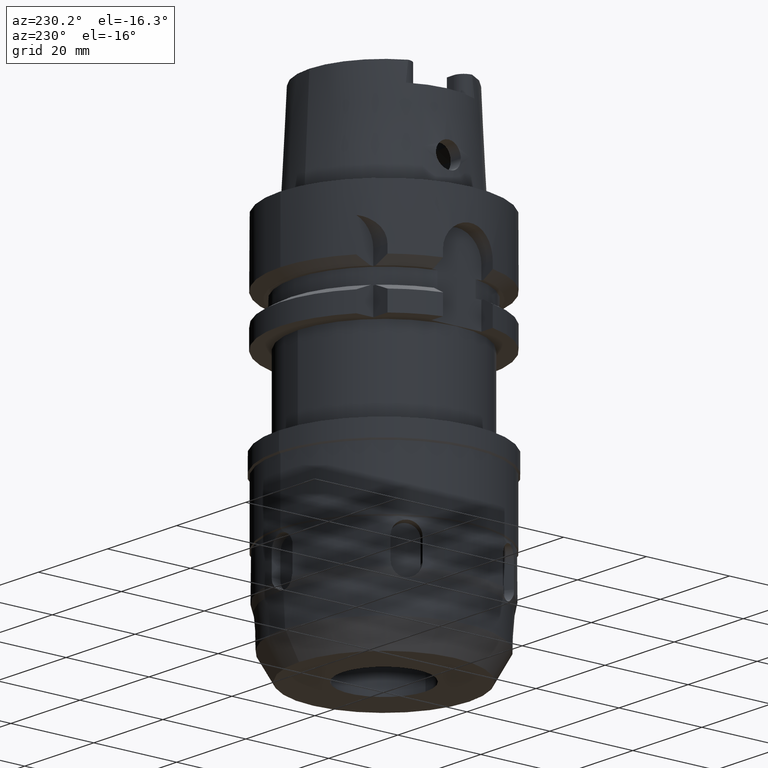
[diagram: clean part render]
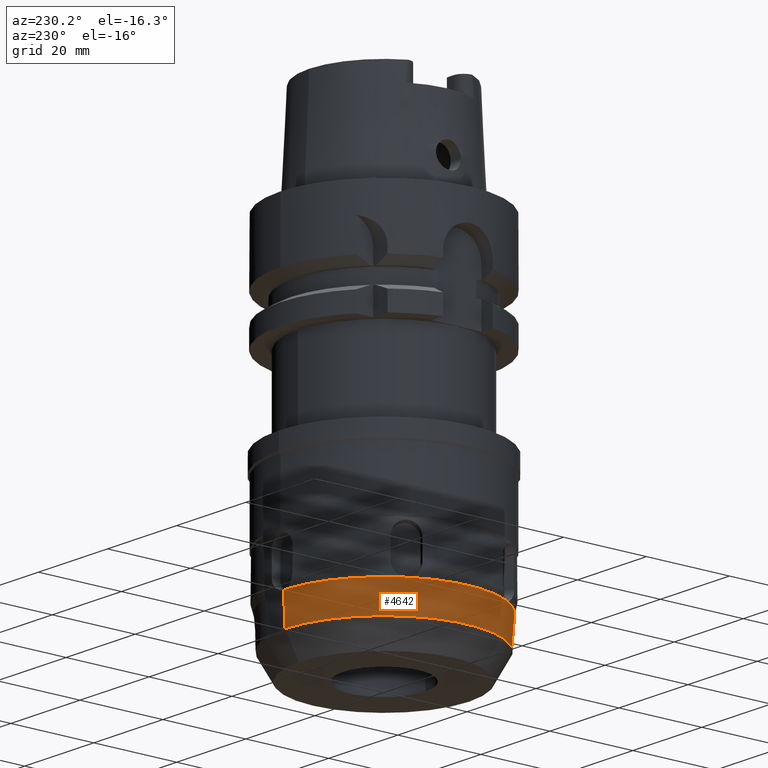
[diagram: same view with one face highlighted and labeled with its STEP entity id]
A machine part, auxiliary view. The second image highlights one B-rep face of the part: STEP entity #4642.
In plain terms, the highlighted conical surface has half-angle 3 deg.
Its self-contained STEP definition (entity closure, byte-faithful):
#997=CARTESIAN_POINT('',(-4.094646360876E-1,-2.424496166851E1,
-7.677192513053E1));
#998=CARTESIAN_POINT('',(-3.642550420449E-1,-2.424539872843E1,
-7.677815384093E1));
#999=CARTESIAN_POINT('',(-2.735360529757E-1,-2.424613316123E1,
-7.678854988682E1));
#1000=CARTESIAN_POINT('',(-1.369037392357E-1,-2.424679921560E1,
-7.679791720367E1));
#1001=CARTESIAN_POINT('',(-4.563313762513E-2,-2.424694809793E1,
-7.679999999628E1));
#1002=CARTESIAN_POINT('',(4.109163539342E-14,-2.424694809793E1,
-7.679999999628E1));
#1007=DIRECTION('',(0.E0,5.233597242862E-2,-9.986295339063E-1));
#1008=VECTOR('',#1007,7.390127923465E0);
#1009=CARTESIAN_POINT('',(4.109163539342E-14,-2.424694809793E1,
-7.679999999628E1));
#1010=LINE('',#1009,#1008);
#1014=CARTESIAN_POINT('',(0.E0,0.E0,-8.418E1));
#1015=DIRECTION('',(0.E0,0.E0,-1.E0));
#1016=DIRECTION('',(0.E0,-1.E0,0.E0));
#1017=AXIS2_PLACEMENT_3D('',#1014,#1015,#1016);
#1022=CARTESIAN_POINT('',(0.E0,2.424694809792E1,-7.679999999654E1));
#1023=CARTESIAN_POINT('',(-4.563313930594E-2,2.424694809792E1,
-7.679999999654E1));
#1024=CARTESIAN_POINT('',(-1.369033371828E-1,2.424679924722E1,
-7.679791727774E1));
#1025=CARTESIAN_POINT('',(-2.735374697900E-1,2.424613303616E1,
-7.678854962665E1));
#1026=CARTESIAN_POINT('',(-3.642519963096E-1,2.424539898971E1,
-7.677815439934E1));
#1027=CARTESIAN_POINT('',(-4.094688746635E-1,2.424496187483E1,
-7.677192445849E1));
#1032=CARTESIAN_POINT('',(-2.079201852721E1,1.247709126198E1,
-7.677192447226E1));
#1033=CARTESIAN_POINT('',(-2.081500545058E1,1.243815096998E1,
-7.677815438992E1));
#1034=CARTESIAN_POINT('',(-2.086099835308E1,1.235995683388E1,
-7.678854963419E1));
#1035=CARTESIAN_POINT('',(-2.092989278995E1,1.224196156073E1,
-7.679791728114E1));
#1036=CARTESIAN_POINT('',(-2.097565574287E1,1.216299308546E1,
-7.679999998835E1));
#1037=CARTESIAN_POINT('',(-2.099847230618E1,1.212347363855E1,
-7.679999998835E1));
#1042=CARTESIAN_POINT('',(-2.099847230618E1,1.212347363855E1,
-7.679999998835E1));
#1043=CARTESIAN_POINT('',(-2.102128886950E1,1.208395419162E1,
-7.679999998835E1));
#1044=CARTESIAN_POINT('',(-2.106679609596E1,1.200483808032E1,
-7.679791728255E1));
#1045=CARTESIAN_POINT('',(-2.113453579423E1,1.188617608370E1,
-7.678854962927E1));
#1046=CARTESIAN_POINT('',(-2.117925742047E1,1.180724806108E1,
-7.677815440047E1));
#1047=CARTESIAN_POINT('',(-2.120148730876E1,1.176787053575E1,
-7.677192445956E1));
#1052=CARTESIAN_POINT('',(-2.120148726215E1,-1.176787060901E1,
-7.677192447216E1));
#1053=CARTESIAN_POINT('',(-2.117925744120E1,-1.180724801555E1,
-7.677815439001E1));
#1054=CARTESIAN_POINT('',(-2.113453578445E1,-1.188617610495E1,
-7.678854963415E1));
#1055=CARTESIAN_POINT('',(-2.106679609868E1,-1.200483807427E1,
-7.679791728116E1));
#1056=CARTESIAN_POINT('',(-2.102128886952E1,-1.208395419165E1,
-7.679999998833E1));
#1057=CARTESIAN_POINT('',(-2.099847230621E1,-1.212347363856E1,
-7.679999998833E1));
#1062=CARTESIAN_POINT('',(-2.099847230621E1,-1.212347363856E1,
-7.679999998833E1));
#1063=CARTESIAN_POINT('',(-2.097565574289E1,-1.216299308548E1,
-7.679999998833E1));
#1064=CARTESIAN_POINT('',(-2.092989279386E1,-1.224196155526E1,
-7.679791728255E1));
#1065=CARTESIAN_POINT('',(-2.086099833945E1,-1.235995685316E1,
-7.678854962927E1));
#1066=CARTESIAN_POINT('',(-2.081500547994E1,-1.243815092882E1,
-7.677815440047E1));
#1067=CARTESIAN_POINT('',(-2.079201848683E1,-1.247709133946E1,
-7.677192445956E1));
#1097=CARTESIAN_POINT('',(0.E0,0.E0,-7.677192445144E1));
#1098=DIRECTION('',(0.E0,0.E0,-1.E0));
#1099=DIRECTION('',(-1.688642998301E-2,-9.998574140758E-1,0.E0));
#1100=AXIS2_PLACEMENT_3D('',#1097,#1098,#1099);
#1149=CARTESIAN_POINT('',(0.E0,0.E0,-7.677192445144E1));
#1150=DIRECTION('',(0.E0,0.E0,-1.E0));
#1151=DIRECTION('',(-8.743451357434E-1,-4.853046296934E-1,0.E0));
#1152=AXIS2_PLACEMENT_3D('',#1149,#1150,#1151);
#1201=CARTESIAN_POINT('',(0.E0,0.E0,-7.677192445144E1));
#1202=DIRECTION('',(0.E0,0.E0,-1.E0));
#1203=DIRECTION('',(-8.574587057603E-1,5.145527843826E-1,0.E0));
#1204=AXIS2_PLACEMENT_3D('',#1201,#1202,#1203);
#1280=DIRECTION('',(0.E0,-5.233597242985E-2,-9.986295339063E-1));
#1281=VECTOR('',#1280,7.390127923207E0);
#1282=CARTESIAN_POINT('',(0.E0,2.424694809792E1,-7.679999999654E1));
#1283=LINE('',#1282,#1281);
#3561=CARTESIAN_POINT('',(0.E0,2.386017856668E1,-8.418E1));
#3562=VERTEX_POINT('',#3561);
#3563=CARTESIAN_POINT('',(2.886611440880E-14,-2.386017856668E1,-8.418E1));
#3564=VERTEX_POINT('',#3563);
#3565=VERTEX_POINT('',#997);
#3566=VERTEX_POINT('',#1002);
#3567=CARTESIAN_POINT('',(0.E0,2.424694809792E1,-7.679999999654E1));
#3568=VERTEX_POINT('',#3567);
#3569=VERTEX_POINT('',#1027);
#3570=CARTESIAN_POINT('',(-2.079201827682E1,1.247709169596E1,
-7.677192445144E1));
#3571=VERTEX_POINT('',#3570);
#3572=VERTEX_POINT('',#1042);
#3573=VERTEX_POINT('',#1047);
#3574=CARTESIAN_POINT('',(-2.120148751246E1,-1.176787017570E1,
-7.677192445144E1));
#3575=VERTEX_POINT('',#3574);
#3576=VERTEX_POINT('',#1062);
#3577=VERTEX_POINT('',#1067);
#4612=CARTESIAN_POINT('',(0.E0,0.E0,-8.047596222572E1));
#4613=DIRECTION('',(0.E0,0.E0,1.E0));
#4614=DIRECTION('',(0.E0,1.E0,0.E0));
#4615=AXIS2_PLACEMENT_3D('',#4612,#4613,#4614);
#4616=CONICAL_SURFACE('',#4615,2.405429896081E1,3.E0);
#4618=ORIENTED_EDGE('',*,*,#4617,.T.);
#4620=ORIENTED_EDGE('',*,*,#4619,.T.);
#4621=ORIENTED_EDGE('',*,*,#4605,.T.);
#4623=ORIENTED_EDGE('',*,*,#4622,.F.);
#4625=ORIENTED_EDGE('',*,*,#4624,.T.);
#4627=ORIENTED_EDGE('',*,*,#4626,.F.);
#4629=ORIENTED_EDGE('',*,*,#4628,.T.);
#4631=ORIENTED_EDGE('',*,*,#4630,.T.);
#4633=ORIENTED_EDGE('',*,*,#4632,.F.);
#4635=ORIENTED_EDGE('',*,*,#4634,.T.);
#4637=ORIENTED_EDGE('',*,*,#4636,.T.);
#4639=ORIENTED_EDGE('',*,*,#4638,.F.);
#4640=EDGE_LOOP('',(#4618,#4620,#4621,#4623,#4625,#4627,#4629,#4631,#4633,#4635,
#4637,#4639));
#4641=FACE_OUTER_BOUND('',#4640,.F.);
#1003=B_SPLINE_CURVE_WITH_KNOTS('',3,(#997,#998,#999,#1000,#1001,#1002),
.UNSPECIFIED.,.F.,.F.,(4,1,1,4),(0.E0,3.333333333333E-1,6.666666666667E-1,1.E0),
.UNSPECIFIED.);
#1018=CIRCLE('',#1017,2.386017856668E1);
#1028=B_SPLINE_CURVE_WITH_KNOTS('',3,(#1022,#1023,#1024,#1025,#1026,#1027),
.UNSPECIFIED.,.F.,.F.,(4,1,1,4),(0.E0,3.333333333333E-1,6.666666666667E-1,1.E0),
.UNSPECIFIED.);
#1038=B_SPLINE_CURVE_WITH_KNOTS('',3,(#1032,#1033,#1034,#1035,#1036,#1037),
.UNSPECIFIED.,.F.,.F.,(4,1,1,4),(0.E0,3.333333333333E-1,6.666666666667E-1,1.E0),
.UNSPECIFIED.);
#1048=B_SPLINE_CURVE_WITH_KNOTS('',3,(#1042,#1043,#1044,#1045,#1046,#1047),
.UNSPECIFIED.,.F.,.F.,(4,1,1,4),(0.E0,3.333333333333E-1,6.666666666667E-1,1.E0),
.UNSPECIFIED.);
#1058=B_SPLINE_CURVE_WITH_KNOTS('',3,(#1052,#1053,#1054,#1055,#1056,#1057),
.UNSPECIFIED.,.F.,.F.,(4,1,1,4),(0.E0,3.333333333333E-1,6.666666666667E-1,1.E0),
.UNSPECIFIED.);
#1068=B_SPLINE_CURVE_WITH_KNOTS('',3,(#1062,#1063,#1064,#1065,#1066,#1067),
.UNSPECIFIED.,.F.,.F.,(4,1,1,4),(0.E0,3.333333333333E-1,6.666666666667E-1,1.E0),
.UNSPECIFIED.);
#1101=CIRCLE('',#1100,2.424841935494E1);
#1153=CIRCLE('',#1152,2.424841935494E1);
#1205=CIRCLE('',#1204,2.424841935494E1);
#4605=EDGE_CURVE('',#3564,#3562,#1018,.T.);
#4617=EDGE_CURVE('',#3565,#3566,#1003,.T.);
#4619=EDGE_CURVE('',#3566,#3564,#1010,.T.);
#4622=EDGE_CURVE('',#3568,#3562,#1283,.T.);
#4624=EDGE_CURVE('',#3568,#3569,#1028,.T.);
#4626=EDGE_CURVE('',#3571,#3569,#1205,.T.);
#4628=EDGE_CURVE('',#3571,#3572,#1038,.T.);
#4630=EDGE_CURVE('',#3572,#3573,#1048,.T.);
#4632=EDGE_CURVE('',#3575,#3573,#1153,.T.);
#4634=EDGE_CURVE('',#3575,#3576,#1058,.T.);
#4636=EDGE_CURVE('',#3576,#3577,#1068,.T.);
#4638=EDGE_CURVE('',#3565,#3577,#1101,.T.);
#4642=ADVANCED_FACE('',(#4641),#4616,.T.);